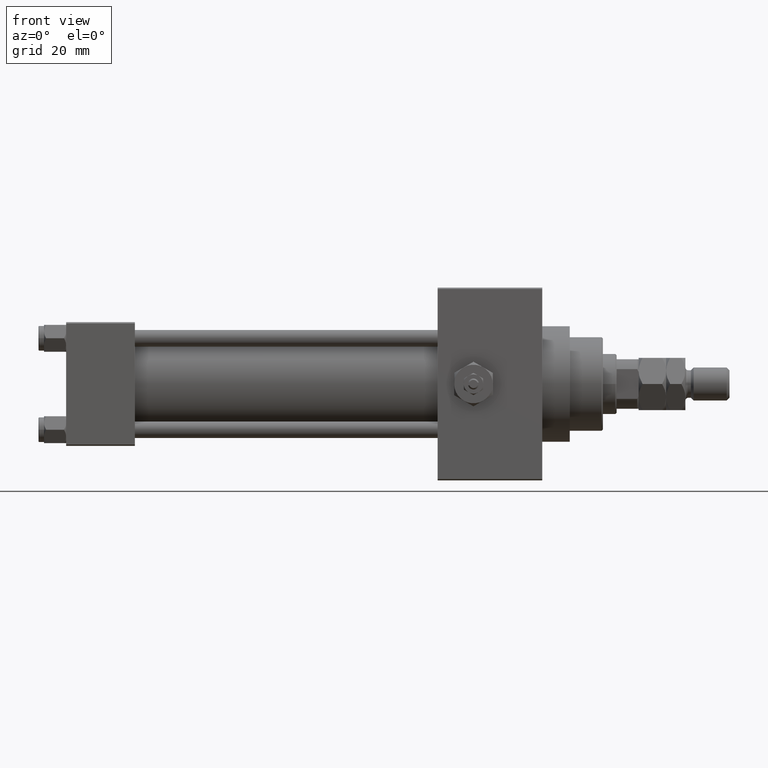
[diagram: clean part render]
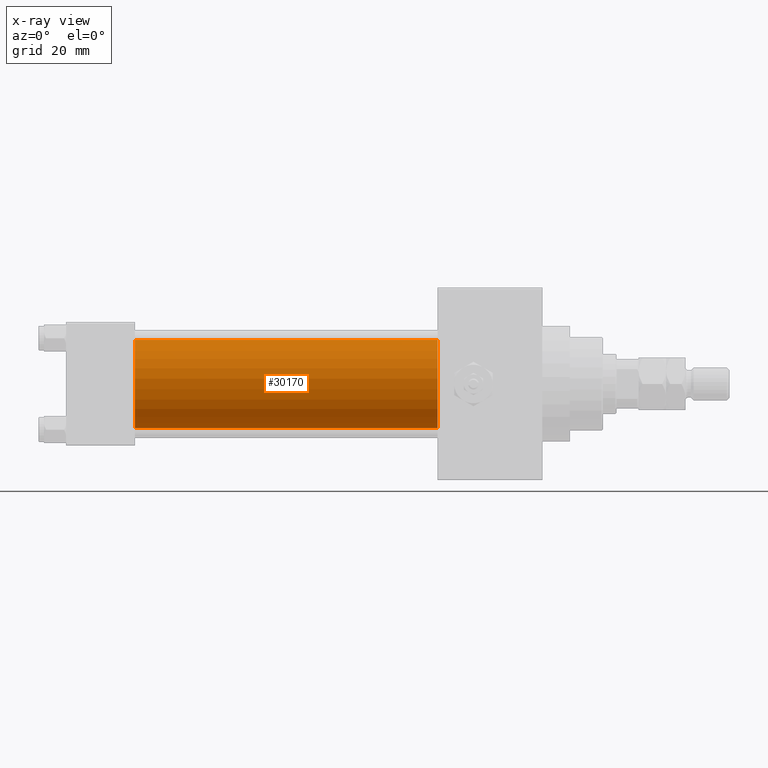
[diagram: x-ray — body ghosted, one internal face saturated and labeled with its STEP entity id]
A machine part, front view, then the same camera in x-ray: the body is ghosted and one INTERNAL B-rep face — a face not visible from any outside direction — is saturated and labeled: STEP entity #30170.
In plain terms, the highlighted cylindrical surface (partial cylindrical patch) has radius 16 mm, axis along (-1, -0, -0).
Its self-contained STEP definition (entity closure, byte-faithful):
#4373 = ORIENTED_EDGE ( 'NONE', *, *, #23728, .T. ) ;
#4760 = LINE ( 'NONE', #27925, #32067 ) ;
#5465 = EDGE_CURVE ( 'NONE', #32738, #44546, #20007, .T. ) ;
#5564 = DIRECTION ( 'NONE',  ( -1.000000000000000000, -0.000000000000000000, -0.000000000000000000 ) ) ;
#7850 = DIRECTION ( 'NONE',  ( -1.000000000000000000, -0.000000000000000000, -0.000000000000000000 ) ) ;
#14825 = ORIENTED_EDGE ( 'NONE', *, *, #39162, .F. ) ;
#16367 = DIRECTION ( 'NONE',  ( 0.000000000000000000, 0.000000000000000000, 1.000000000000000000 ) ) ;
#18289 = DIRECTION ( 'NONE',  ( 1.000000000000000000, 0.000000000000000000, 0.000000000000000000 ) ) ;
#18539 = DIRECTION ( 'NONE',  ( 0.000000000000000000, 0.000000000000000000, -1.000000000000000000 ) ) ;
#18778 = CARTESIAN_POINT ( 'NONE',  ( 25.00000000000000000, -2.602085213965210642E-15, 16.00000000000000000 ) ) ;
#20007 = CIRCLE ( 'NONE', #47686, 16.00000000000000000 ) ;
#20332 = CARTESIAN_POINT ( 'NONE',  ( 135.0000000000000000, -2.602085213965210642E-15, 16.00000000000000000 ) ) ;
#20926 = EDGE_LOOP ( 'NONE', ( #40751, #4373, #24447, #14825 ) ) ;
#22525 = VERTEX_POINT ( 'NONE', #18778 ) ;
#23478 = CARTESIAN_POINT ( 'NONE',  ( 135.0000000000000000, -6.426503353294456087E-16, -16.00000000000000000 ) ) ;
#23648 = EDGE_CURVE ( 'NONE', #22525, #45079, #45076, .T. ) ;
#23728 = EDGE_CURVE ( 'NONE', #44546, #45079, #4760, .T. ) ;
#23790 = CARTESIAN_POINT ( 'NONE',  ( 25.00000000000000000, -6.426503353294456087E-16, -16.00000000000000000 ) ) ;
#24447 = ORIENTED_EDGE ( 'NONE', *, *, #23648, .F. ) ;
#24522 = CYLINDRICAL_SURFACE ( 'NONE', #28202, 16.00000000000000000 ) ;
#27925 = CARTESIAN_POINT ( 'NONE',  ( 135.0000000000000000, -6.426503353294456087E-16, -16.00000000000000000 ) ) ;
#28202 = AXIS2_PLACEMENT_3D ( 'NONE', #31661, #47709, #16367 ) ;
#30170 = ADVANCED_FACE ( 'NONE', ( #39303 ), #24522, .F. ) ;
#31399 = VECTOR ( 'NONE', #5564, 1000.000000000000000 ) ;
#31661 = CARTESIAN_POINT ( 'NONE',  ( 135.0000000000000000, -2.602085213965210642E-15, 0.000000000000000000 ) ) ;
#32067 = VECTOR ( 'NONE', #7850, 1000.000000000000000 ) ;
#32738 = VERTEX_POINT ( 'NONE', #37286 ) ;
#33843 = CARTESIAN_POINT ( 'NONE',  ( 25.00000000000000000, -2.602085213965210642E-15, 0.000000000000000000 ) ) ;
#34100 = CARTESIAN_POINT ( 'NONE',  ( 135.0000000000000000, -2.602085213965210642E-15, 0.000000000000000000 ) ) ;
#37286 = CARTESIAN_POINT ( 'NONE',  ( 135.0000000000000000, -2.602085213965210642E-15, 16.00000000000000000 ) ) ;
#39162 = EDGE_CURVE ( 'NONE', #32738, #22525, #44013, .T. ) ;
#39303 = FACE_OUTER_BOUND ( 'NONE', #20926, .T. ) ;
#39375 = AXIS2_PLACEMENT_3D ( 'NONE', #33843, #18289, #18539 ) ;
#40751 = ORIENTED_EDGE ( 'NONE', *, *, #5465, .T. ) ;
#44013 = LINE ( 'NONE', #20332, #31399 ) ;
#44546 = VERTEX_POINT ( 'NONE', #23478 ) ;
#45076 = CIRCLE ( 'NONE', #39375, 16.00000000000000000 ) ;
#45079 = VERTEX_POINT ( 'NONE', #23790 ) ;
#46055 = DIRECTION ( 'NONE',  ( 0.000000000000000000, 0.000000000000000000, -1.000000000000000000 ) ) ;
#47686 = AXIS2_PLACEMENT_3D ( 'NONE', #34100, #50135, #46055 ) ;
#47709 = DIRECTION ( 'NONE',  ( -1.000000000000000000, -0.000000000000000000, -0.000000000000000000 ) ) ;
#50135 = DIRECTION ( 'NONE',  ( 1.000000000000000000, 0.000000000000000000, 0.000000000000000000 ) ) ;